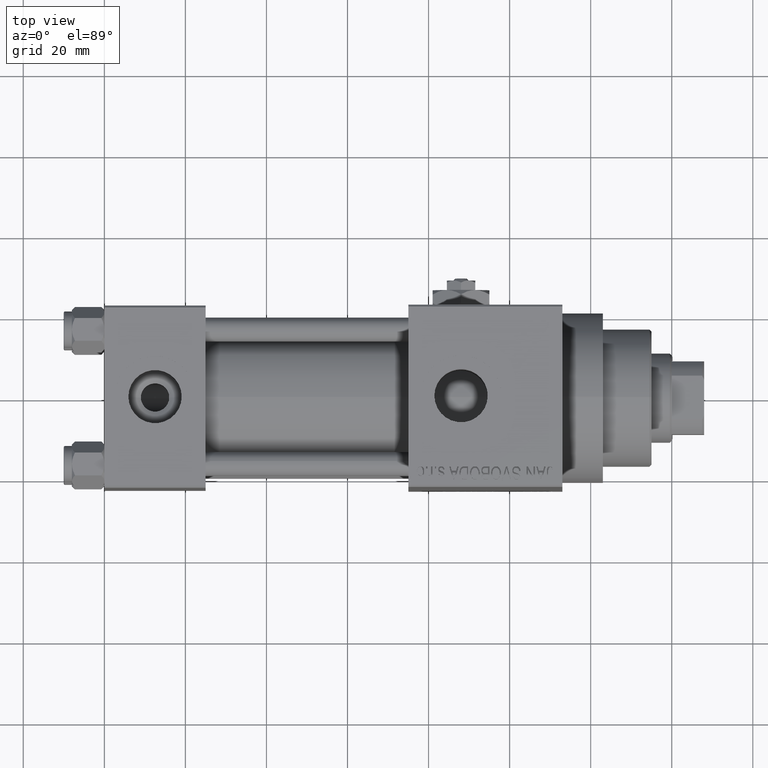
[diagram: clean part render]
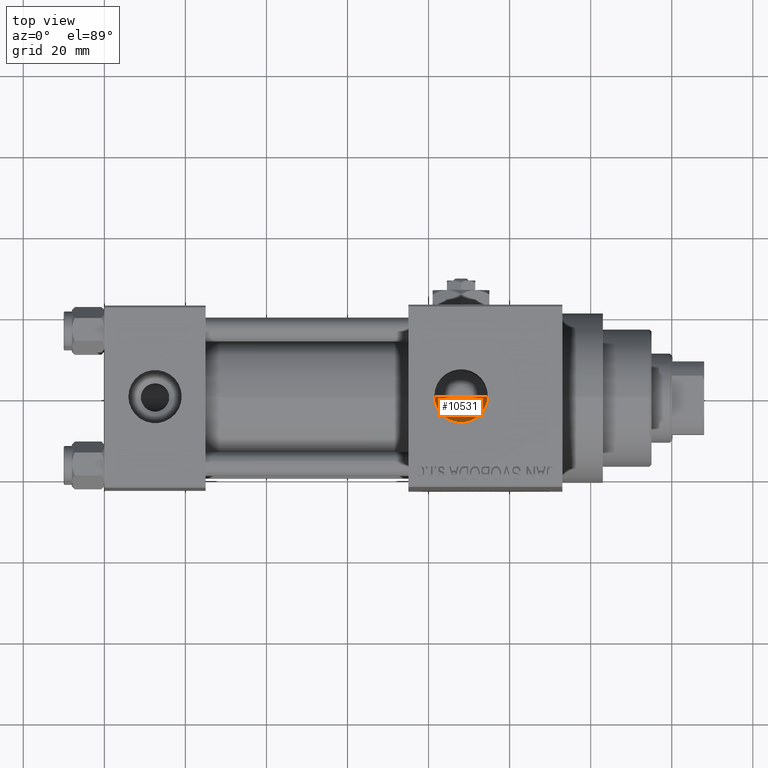
[diagram: same view with one face highlighted and labeled with its STEP entity id]
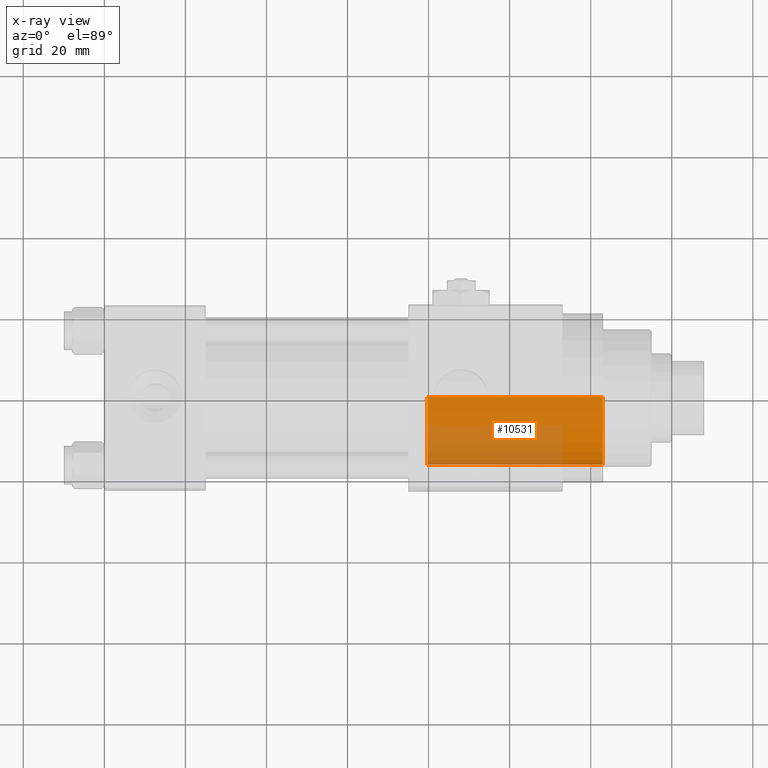
[diagram: x-ray of the same camera — body ghosted, the highlighted face saturated]
A machine part, top view. The second image highlights one B-rep face of the part: STEP entity #10531.
The next image is the same camera in x-ray: the body ghosted, the highlighted face saturated — about 44% of this face is hidden behind the body in this view.
In plain terms, the highlighted cylindrical surface (partial cylindrical patch) has radius 16.5 mm, axis along (-1, 0, 0).
Its self-contained STEP definition (entity closure, byte-faithful):
#90 = EDGE_LOOP ( 'NONE', ( #5116, #16746, #27670, #44299 ) ) ;
#1109 = DIRECTION ( 'NONE',  ( -0.000000000000000000, -0.000000000000000000, -1.000000000000000000 ) ) ;
#1153 = CIRCLE ( 'NONE', #6694, 16.50000000000000000 ) ;
#2172 = AXIS2_PLACEMENT_3D ( 'NONE', #6849, #7085, #18446 ) ;
#3499 = AXIS2_PLACEMENT_3D ( 'NONE', #44071, #35944, #17700 ) ;
#5116 = ORIENTED_EDGE ( 'NONE', *, *, #26691, .F. ) ;
#5141 = CARTESIAN_POINT ( 'NONE',  ( -16.50000000000000000, 0.000000000000000000, 43.25999999999999801 ) ) ;
#6694 = AXIS2_PLACEMENT_3D ( 'NONE', #16228, #8801, #35215 ) ;
#6849 = CARTESIAN_POINT ( 'NONE',  ( 0.000000000000000000, 0.000000000000000000, 43.25999999999999801 ) ) ;
#7085 = DIRECTION ( 'NONE',  ( -0.000000000000000000, -0.000000000000000000, -1.000000000000000000 ) ) ;
#8801 = DIRECTION ( 'NONE',  ( 0.000000000000000000, 0.000000000000000000, 1.000000000000000000 ) ) ;
#10531 = ADVANCED_FACE ( 'NONE', ( #48777 ), #14256, .T. ) ;
#14256 = CYLINDRICAL_SURFACE ( 'NONE', #2172, 16.50000000000000000 ) ;
#16228 = CARTESIAN_POINT ( 'NONE',  ( 0.000000000000000000, 0.000000000000000000, 0.000000000000000000 ) ) ;
#16415 = LINE ( 'NONE', #42557, #47524 ) ;
#16746 = ORIENTED_EDGE ( 'NONE', *, *, #46280, .T. ) ;
#17700 = DIRECTION ( 'NONE',  ( 1.000000000000000000, 0.000000000000000000, 0.000000000000000000 ) ) ;
#18446 = DIRECTION ( 'NONE',  ( -1.000000000000000000, 0.000000000000000000, 0.000000000000000000 ) ) ;
#21719 = CARTESIAN_POINT ( 'NONE',  ( 16.50000000000000000, 2.020667218593133100E-15, 0.000000000000000000 ) ) ;
#23170 = VERTEX_POINT ( 'NONE', #29285 ) ;
#25538 = VECTOR ( 'NONE', #47971, 1000.000000000000000 ) ;
#26691 = EDGE_CURVE ( 'NONE', #27048, #44026, #46832, .T. ) ;
#27048 = VERTEX_POINT ( 'NONE', #37353 ) ;
#27670 = ORIENTED_EDGE ( 'NONE', *, *, #30240, .T. ) ;
#29285 = CARTESIAN_POINT ( 'NONE',  ( -16.50000000000000000, 0.000000000000000000, 0.000000000000000000 ) ) ;
#30240 = EDGE_CURVE ( 'NONE', #41303, #23170, #1153, .T. ) ;
#32936 = CARTESIAN_POINT ( 'NONE',  ( -16.50000000000000000, 0.000000000000000000, 43.25999999999999801 ) ) ;
#35215 = DIRECTION ( 'NONE',  ( 1.000000000000000000, 0.000000000000000000, 0.000000000000000000 ) ) ;
#35944 = DIRECTION ( 'NONE',  ( 0.000000000000000000, 0.000000000000000000, 1.000000000000000000 ) ) ;
#37353 = CARTESIAN_POINT ( 'NONE',  ( 16.50000000000000000, 2.020667218593133100E-15, 43.25999999999999801 ) ) ;
#37363 = LINE ( 'NONE', #32936, #25538 ) ;
#41303 = VERTEX_POINT ( 'NONE', #21719 ) ;
#42557 = CARTESIAN_POINT ( 'NONE',  ( 16.50000000000000000, 2.020667218593133100E-15, 43.25999999999999801 ) ) ;
#44026 = VERTEX_POINT ( 'NONE', #5141 ) ;
#44071 = CARTESIAN_POINT ( 'NONE',  ( 0.000000000000000000, 0.000000000000000000, 43.25999999999999801 ) ) ;
#44299 = ORIENTED_EDGE ( 'NONE', *, *, #47571, .F. ) ;
#46280 = EDGE_CURVE ( 'NONE', #27048, #41303, #16415, .T. ) ;
#46832 = CIRCLE ( 'NONE', #3499, 16.50000000000000000 ) ;
#47524 = VECTOR ( 'NONE', #1109, 1000.000000000000000 ) ;
#47571 = EDGE_CURVE ( 'NONE', #44026, #23170, #37363, .T. ) ;
#47971 = DIRECTION ( 'NONE',  ( -0.000000000000000000, -0.000000000000000000, -1.000000000000000000 ) ) ;
#48777 = FACE_OUTER_BOUND ( 'NONE', #90, .T. ) ;